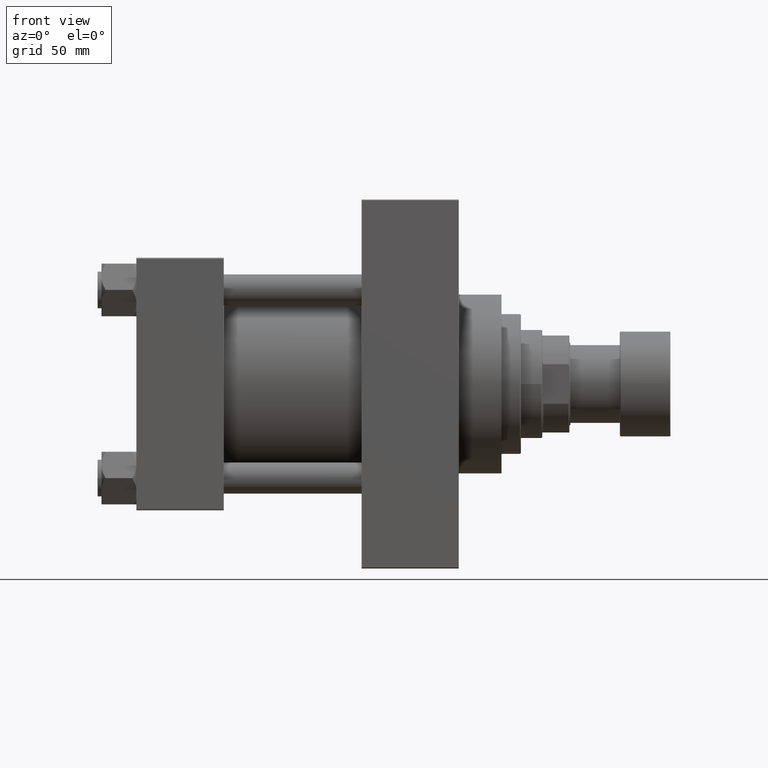
[diagram: clean part render]
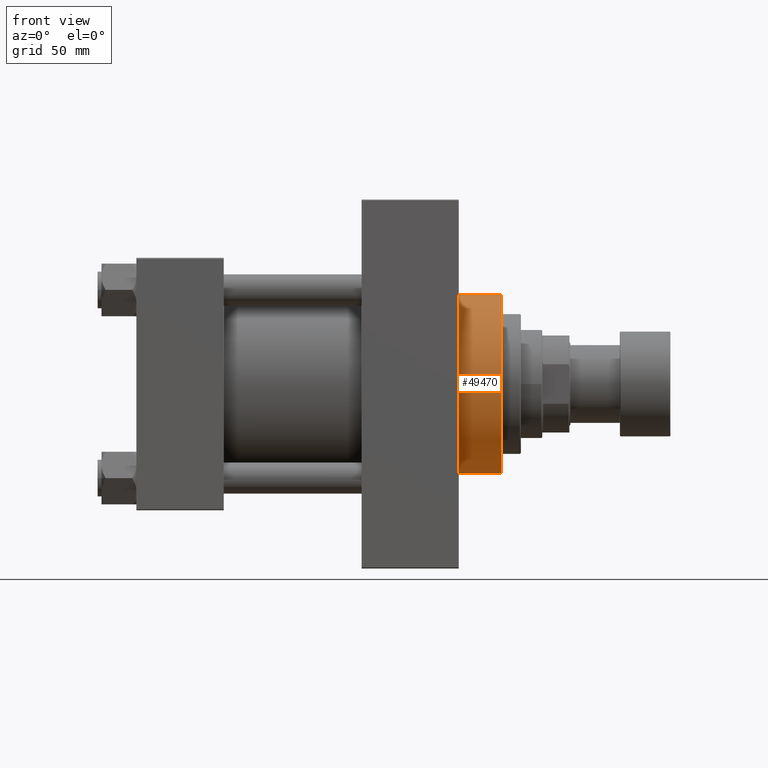
[diagram: same view with one face highlighted and labeled with its STEP entity id]
A machine part, front view. The second image highlights one B-rep face of the part: STEP entity #49470.
In plain terms, the highlighted cylindrical surface (partial cylindrical patch) has radius 46 mm, axis along (-1, -0, -0).
Its self-contained STEP definition (entity closure, byte-faithful):
#558 = DIRECTION ( 'NONE',  ( -1.000000000000000000, -0.000000000000000000, -0.000000000000000000 ) ) ;
#1036 = DIRECTION ( 'NONE',  ( 0.000000000000000000, 0.000000000000000000, -1.000000000000000000 ) ) ;
#1955 = VERTEX_POINT ( 'NONE', #36610 ) ;
#3323 = DIRECTION ( 'NONE',  ( -1.000000000000000000, -0.000000000000000000, -0.000000000000000000 ) ) ;
#4106 = EDGE_CURVE ( 'NONE', #36766, #1955, #35739, .T. ) ;
#4381 = FACE_OUTER_BOUND ( 'NONE', #40902, .T. ) ;
#4547 = ORIENTED_EDGE ( 'NONE', *, *, #6473, .T. ) ;
#6473 = EDGE_CURVE ( 'NONE', #21955, #13906, #9862, .T. ) ;
#8280 = CARTESIAN_POINT ( 'NONE',  ( 165.9999999999999716, 5.633375276077824704E-15, -46.00000000000000000 ) ) ;
#9862 = CIRCLE ( 'NONE', #13914, 46.00000000000000000 ) ;
#13128 = CARTESIAN_POINT ( 'NONE',  ( 187.9999999999999716, 0.000000000000000000, 46.00000000000000000 ) ) ;
#13906 = VERTEX_POINT ( 'NONE', #8280 ) ;
#13914 = AXIS2_PLACEMENT_3D ( 'NONE', #48716, #18405, #33212 ) ;
#18405 = DIRECTION ( 'NONE',  ( 1.000000000000000000, 0.000000000000000000, 0.000000000000000000 ) ) ;
#19890 = CYLINDRICAL_SURFACE ( 'NONE', #28854, 46.00000000000000000 ) ;
#20612 = ORIENTED_EDGE ( 'NONE', *, *, #25708, .F. ) ;
#21099 = EDGE_CURVE ( 'NONE', #36766, #21955, #22457, .T. ) ;
#21955 = VERTEX_POINT ( 'NONE', #29562 ) ;
#22457 = LINE ( 'NONE', #34177, #47467 ) ;
#23913 = CARTESIAN_POINT ( 'NONE',  ( 187.9999999999999716, 5.633375276077824704E-15, -46.00000000000000000 ) ) ;
#25291 = ORIENTED_EDGE ( 'NONE', *, *, #21099, .T. ) ;
#25708 = EDGE_CURVE ( 'NONE', #1955, #13906, #27752, .T. ) ;
#27319 = VECTOR ( 'NONE', #3323, 1000.000000000000000 ) ;
#27752 = LINE ( 'NONE', #23913, #27319 ) ;
#28854 = AXIS2_PLACEMENT_3D ( 'NONE', #35431, #558, #31616 ) ;
#29562 = CARTESIAN_POINT ( 'NONE',  ( 165.9999999999999716, 0.000000000000000000, 46.00000000000000000 ) ) ;
#31616 = DIRECTION ( 'NONE',  ( 0.000000000000000000, 0.000000000000000000, 1.000000000000000000 ) ) ;
#33212 = DIRECTION ( 'NONE',  ( 0.000000000000000000, 0.000000000000000000, -1.000000000000000000 ) ) ;
#34177 = CARTESIAN_POINT ( 'NONE',  ( 187.9999999999999716, 0.000000000000000000, 46.00000000000000000 ) ) ;
#35431 = CARTESIAN_POINT ( 'NONE',  ( 187.9999999999999716, 0.000000000000000000, 0.000000000000000000 ) ) ;
#35739 = CIRCLE ( 'NONE', #42242, 46.00000000000000000 ) ;
#36610 = CARTESIAN_POINT ( 'NONE',  ( 187.9999999999999716, 5.633375276077824704E-15, -46.00000000000000000 ) ) ;
#36766 = VERTEX_POINT ( 'NONE', #13128 ) ;
#37577 = ORIENTED_EDGE ( 'NONE', *, *, #4106, .F. ) ;
#37991 = DIRECTION ( 'NONE',  ( -1.000000000000000000, -0.000000000000000000, -0.000000000000000000 ) ) ;
#39728 = CARTESIAN_POINT ( 'NONE',  ( 187.9999999999999716, 0.000000000000000000, 0.000000000000000000 ) ) ;
#40902 = EDGE_LOOP ( 'NONE', ( #20612, #37577, #25291, #4547 ) ) ;
#42242 = AXIS2_PLACEMENT_3D ( 'NONE', #39728, #47101, #1036 ) ;
#47101 = DIRECTION ( 'NONE',  ( 1.000000000000000000, 0.000000000000000000, 0.000000000000000000 ) ) ;
#47467 = VECTOR ( 'NONE', #37991, 1000.000000000000000 ) ;
#48716 = CARTESIAN_POINT ( 'NONE',  ( 165.9999999999999716, 0.000000000000000000, 0.000000000000000000 ) ) ;
#49470 = ADVANCED_FACE ( 'NONE', ( #4381 ), #19890, .T. ) ;